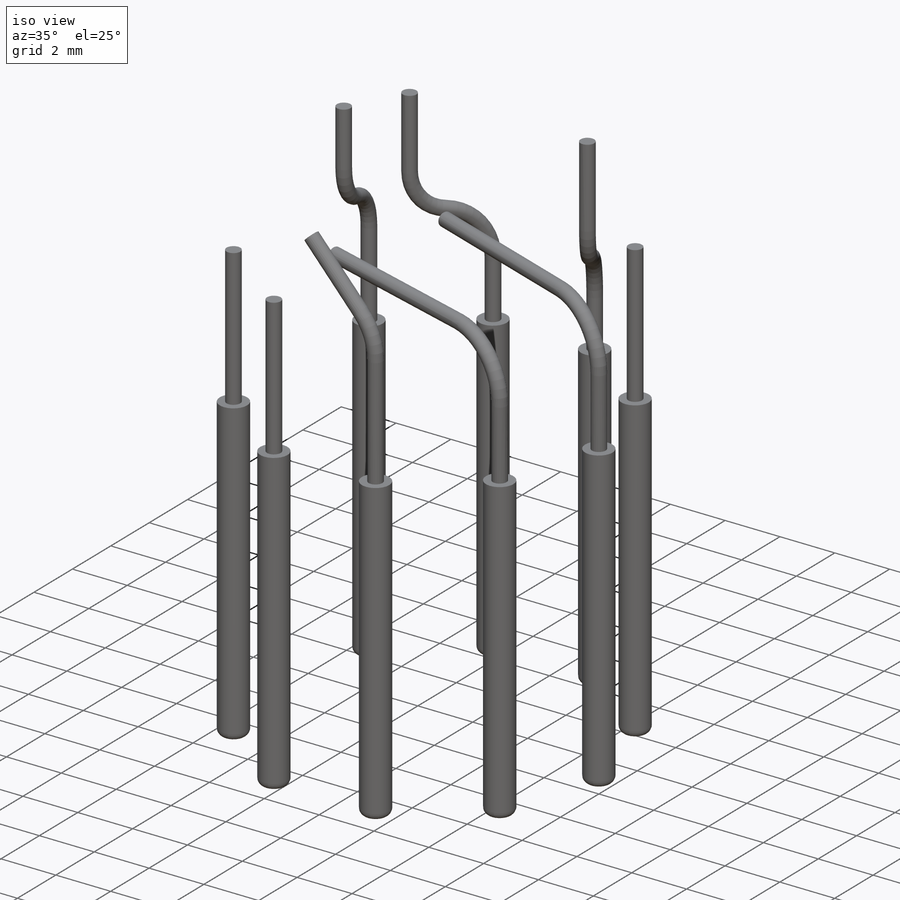
[diagram: iso view]
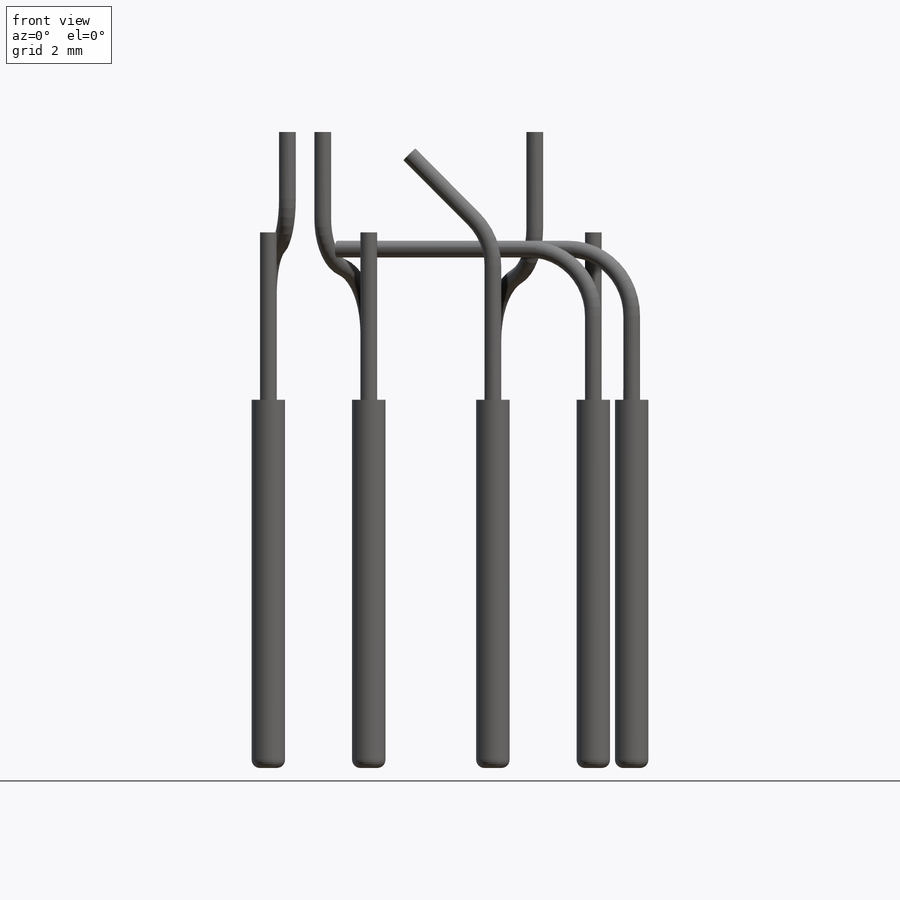
[diagram: front view]
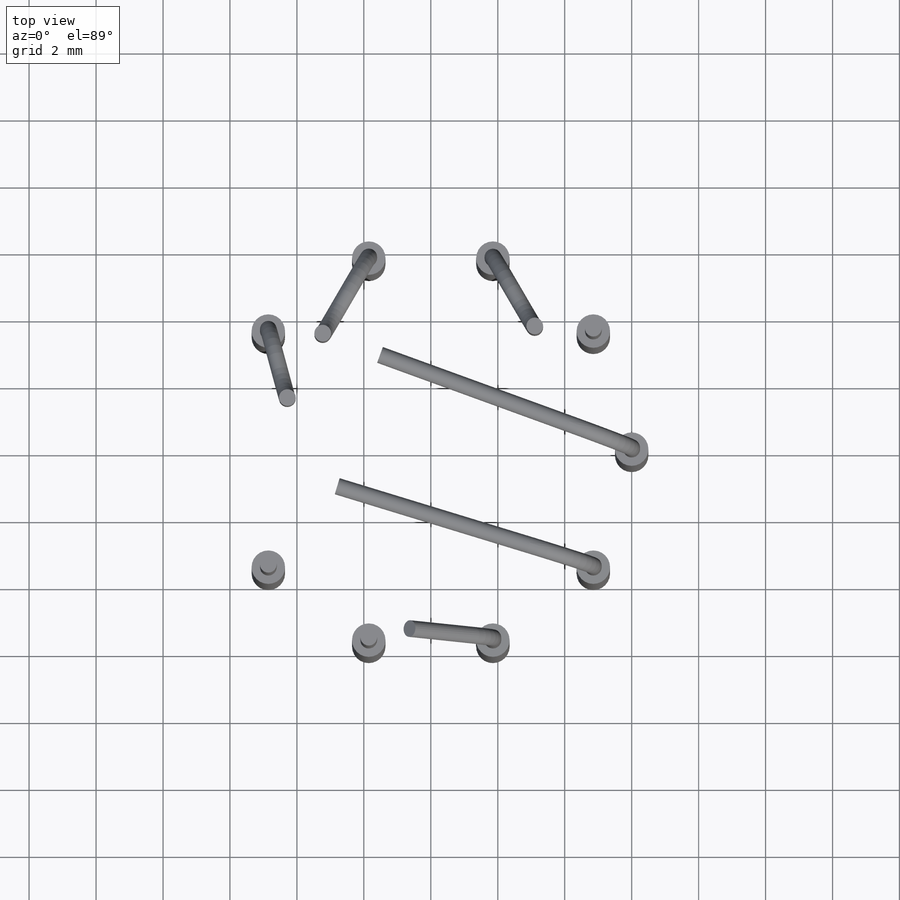
[diagram: top view]
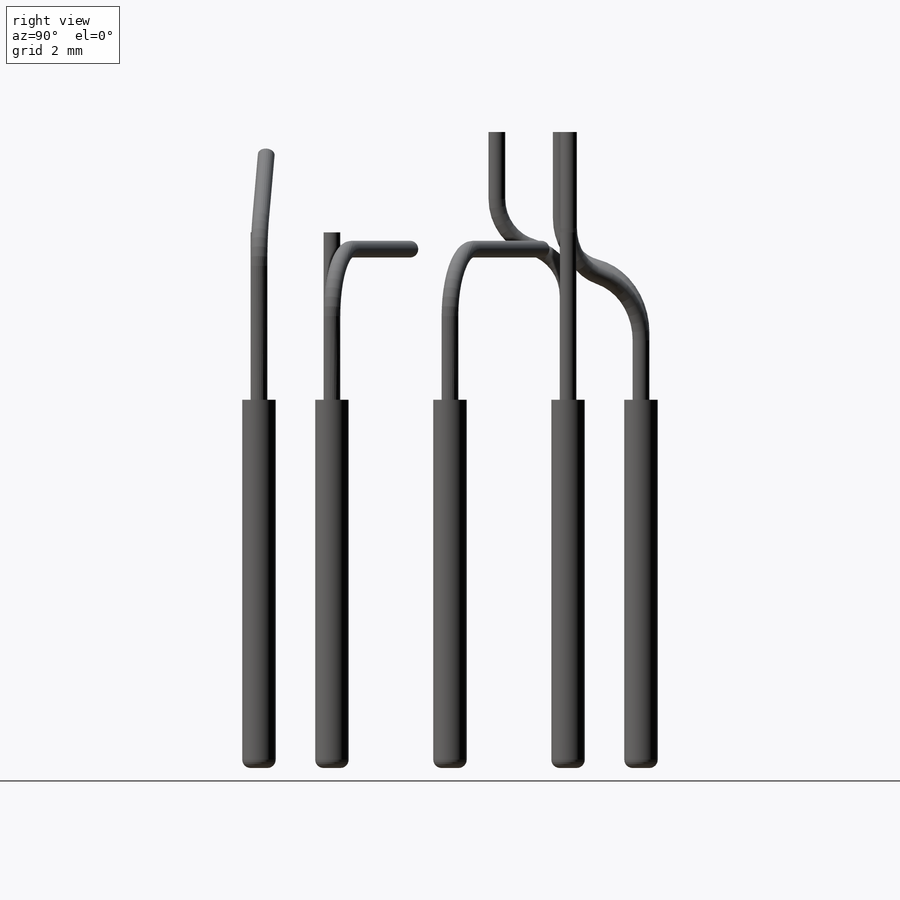
[diagram: right view]
SOLIDWORKS PART (.sldprt)
format: sldprt  version: not decoded by parser v0  size: 537,088 bytes
history: native  units: mm
features: sketch x14, fillet x9, extrude x8, plane x8, sweep x6, material x1 (+12 scaffold rows collapsed)
feature tree (58):
  scaffold x12  (default folders/planes/origin — collapsed)
  material  "Chrome Stainless Steel"
  sketch  "Sketch1"  dims[c1.D1=12.0mm c1.D2=1.0mm c1.D3=6.0mm c2.D3=36.0deg c2.D4=~5.706339mm c3.D4=72.0deg c3.D5=~5.706339mm c4.D5=72.0deg c4.D6=6.0mm c5.D6=36.0deg c5.D7=~4.854102mm c6.D7=36.0deg c7.D7=13.75mm c8.D7=36.0deg c8.D8=6.0mm c9.D8=72.0deg c9.D9=6.0mm c10.D9=162.0deg c11.D9=~5.706339mm c12.D9=72.0deg c12.D10=~4.854102mm c13.D10=36.0deg c13.D11=~4.854102mm c14.D11=36.0deg]
  extrude  "Extrude2"  Depth=6.5mm
  plane  "Plane1"  Offset=4.5mm
  sketch  "Sketch3"  dims[D1=0.5mm]
  extrude  "Extrude3"  Depth=5mm
  plane  "base of lower mica"  Offset=13mm
  fillet  "Fillet1"  Radius=0.25mm
  fillet  "Fillet2"  Radius=0.25mm
  fillet  "Fillet3"  Radius=0.25mm
  fillet  "Fillet4"  Radius=0.25mm
  fillet  "Fillet5"  Radius=0.25mm
  fillet  "Fillet6"  Radius=0.25mm
  fillet  "Fillet7"  Radius=0.25mm
  fillet  "Fillet8"  Radius=0.25mm
  fillet  "Fillet9"  Radius=0.25mm
  extrude  "Axis2"  [1 undecoded]
  plane  "Plane3"
  sketch  "Sketch4"  dims[c1.D1=2.0mm c1.D2=4.0mm c1.D3=2.5mm c1.D4=~2.576237mm c2.D4=135.0deg]
  sketch  "Sketch5"  dims[D1=0.5mm]
  sweep  "Sweep1"
  extrude  "Axis3"  [1 undecoded]
  extrude  "Axis4"  [1 undecoded]
  plane  "Plane4"
  plane  "Plane5"
  sketch  "Sketch6"  dims[D3=2.0mm D1=4.5mm D2=8.0mm]
  sketch  "Sketch7"  dims[D1=0.5mm]
  sweep  "Sweep2"
  sketch  "Sketch8"  dims[D1=2.0mm D2=4.5mm D3=8.0mm]
  sketch  "Sketch9"  dims[D1=0.5mm]
  sweep  "Sweep3"
  extrude  "Axis5"  [1 undecoded]
  plane  "Plane6"
  sketch  "Sketch10"  dims[D3=2.0mm D1=4.0mm D2=8.0mm D4=2.5mm D5=~5.239726mm]
  sketch  "Sketch12"  dims[D1=0.5mm]
  sweep  "Sweep4"
  extrude  "Axis6"  [1 undecoded]
  plane  "Plane7"
  sketch  "Sketch13"  dims[D1=2.0mm D2=1.5mm D3=2.75mm D4=2.0mm D5=8.0mm]
  sketch  "Sketch14"  dims[D1=0.5mm]
  sweep  "Sweep5"
  extrude  "Axis7"  [1 undecoded]
  plane  "Plane8"
  sketch  "Sketch15"  dims[D3=1.5mm D4=1.5mm D1=8.0mm D2=4.0mm D5=2.2mm D6=2.0mm]
  sketch  "Sketch16"  dims[D1=0.5mm]
  sweep  "Sweep6"
decode coverage: 25 of 37 modeling features carry decoded parameters
note: ~ marks probable driven/reference dimensions
note: 6 parameter values undecoded
summary: no parameter record found for 6 features; profile_refs inferred from adjacent sketches, not decoded
note: suppression state not decoded; provenance and decode notes live in map.json
